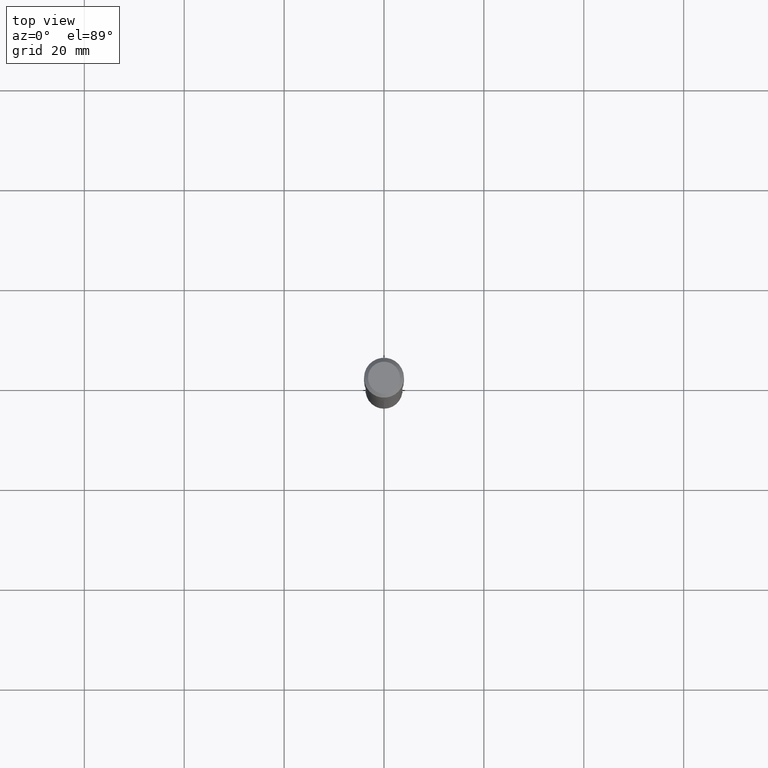
[diagram: clean part render]
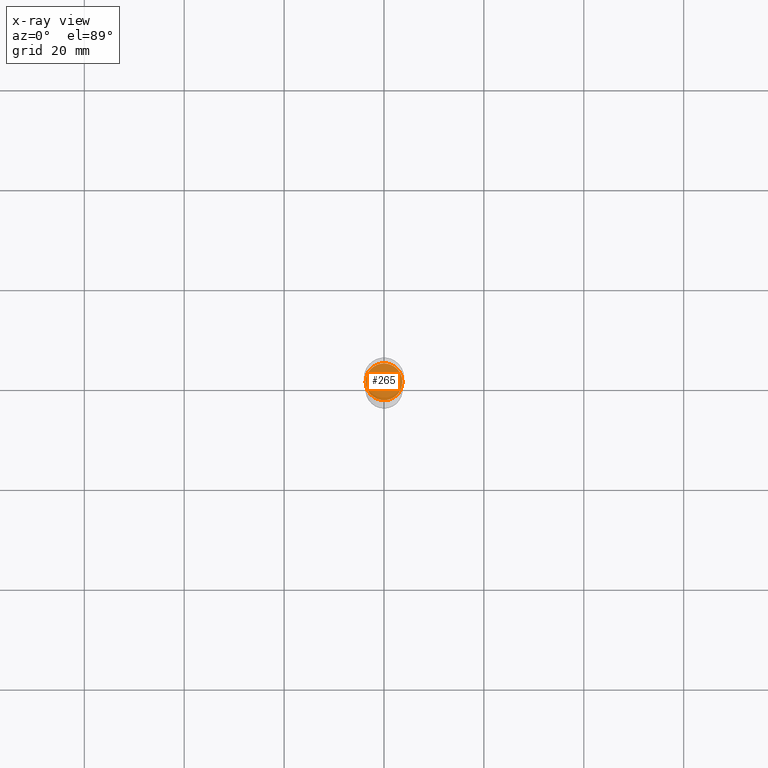
[diagram: x-ray — body ghosted, one internal face saturated and labeled with its STEP entity id]
A machine part, top view, then the same camera in x-ray: the body is ghosted and one INTERNAL B-rep face — a face not visible from any outside direction — is saturated and labeled: STEP entity #265.
In plain terms, the highlighted planar face has unit normal (-0, 0, 1).
Its self-contained STEP definition (entity closure, byte-faithful):
#2 = CARTESIAN_POINT ( 'NONE',  ( -0.1451500000000000012, -5.715031419853903591E-15, -1.932999999999999829 ) ) ;
#6 = DIRECTION ( 'NONE',  ( -2.438088387897960049E-29, 3.491481338843145188E-15, 1.000000000000000000 ) ) ;
#9 = PLANE ( 'NONE',  #307 ) ;
#46 = CIRCLE ( 'NONE', #314, 0.1451500000000000012 ) ;
#55 = DIRECTION ( 'NONE',  ( -2.445468806185136597E-29, 3.491481338843145583E-15, 1.000000000000000000 ) ) ;
#60 = ORIENTED_EDGE ( 'NONE', *, *, #451, .F. ) ;
#81 = DIRECTION ( 'NONE',  ( 1.000000000000000000, -6.982962677686265922E-15, 0.000000000000000000 ) ) ;
#191 = DIRECTION ( 'NONE',  ( -2.445468806185136597E-29, 3.491481338843145583E-15, 1.000000000000000000 ) ) ;
#195 = EDGE_CURVE ( 'NONE', #272, #394, #46, .T. ) ;
#204 = DIRECTION ( 'NONE',  ( 1.000000000000000000, -6.982962677686265922E-15, 0.000000000000000000 ) ) ;
#265 = ADVANCED_FACE ( 'NONE', ( #341 ), #9, .F. ) ;
#269 = CIRCLE ( 'NONE', #296, 0.1451500000000000012 ) ;
#272 = VERTEX_POINT ( 'NONE', #2 ) ;
#287 = ORIENTED_EDGE ( 'NONE', *, *, #195, .F. ) ;
#296 = AXIS2_PLACEMENT_3D ( 'NONE', #387, #55, #204 ) ;
#307 = AXIS2_PLACEMENT_3D ( 'NONE', #458, #6, #456 ) ;
#314 = AXIS2_PLACEMENT_3D ( 'NONE', #455, #191, #81 ) ;
#341 = FACE_OUTER_BOUND ( 'NONE', #346, .T. ) ;
#346 = EDGE_LOOP ( 'NONE', ( #60, #287 ) ) ;
#387 = CARTESIAN_POINT ( 'NONE',  ( 4.727091202355868625E-29, -6.749033427983799432E-15, -1.932999999999999829 ) ) ;
#394 = VERTEX_POINT ( 'NONE', #470 ) ;
#451 = EDGE_CURVE ( 'NONE', #394, #272, #269, .T. ) ;
#455 = CARTESIAN_POINT ( 'NONE',  ( 4.727091202355868625E-29, -6.749033427983799432E-15, -1.932999999999999829 ) ) ;
#456 = DIRECTION ( 'NONE',  ( 1.000000000000000000, -6.982962677686265922E-15, 4.876176775795935793E-29 ) ) ;
#458 = CARTESIAN_POINT ( 'NONE',  ( 4.727091202355868625E-29, -6.749033427983799432E-15, -1.932999999999999829 ) ) ;
#470 = CARTESIAN_POINT ( 'NONE',  ( 0.1451500000000000012, -7.762610460649961480E-15, -1.932999999999999829 ) ) ;